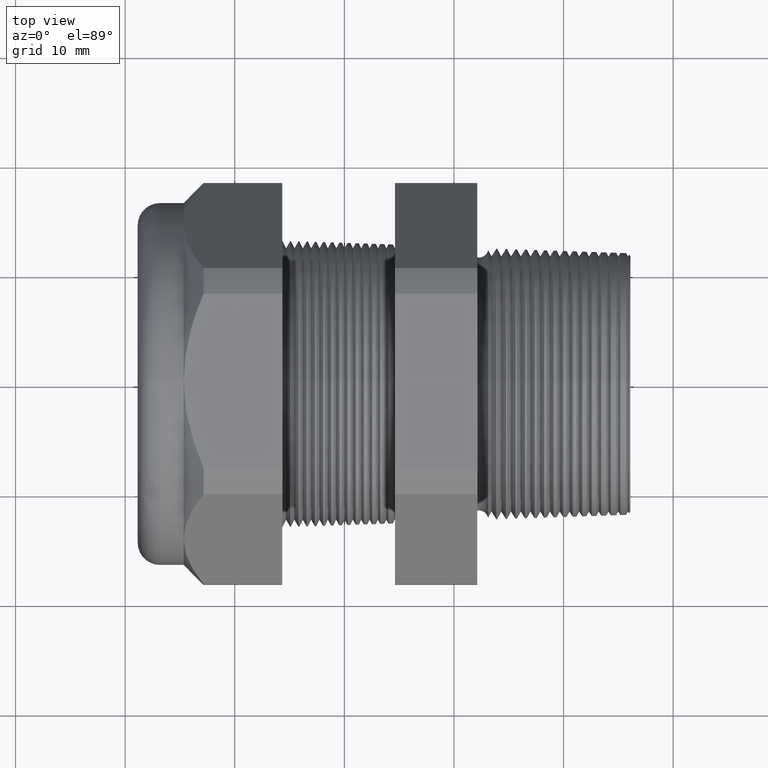
[diagram: clean part render]
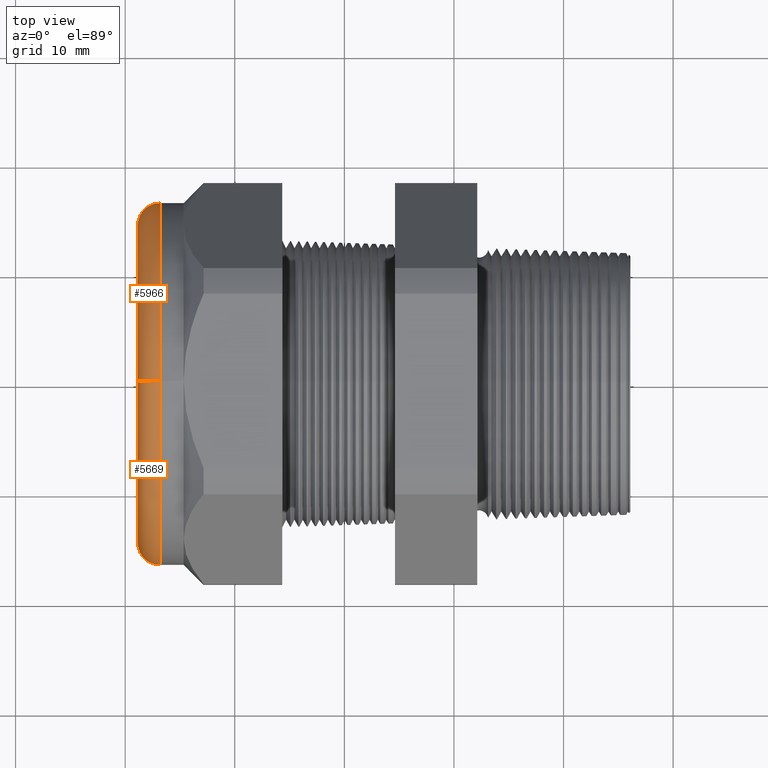
[diagram: same view with one multi-face feature highlighted, each face labeled with its STEP entity id]
A machine part, top view. The highlighted faces form ONE feature: a constant-radius fillet chain: 2 tangent blend faces with common blend radius 2.032 mm. The faces share edges in the B-rep.
Their STEP definitions:
[1] entity #5669 (Torus):
#82 = EDGE_CURVE ( 'NONE', #5962, #5964, #542, .T. ) ;
#542 = CIRCLE ( 'NONE', #597, 0.6499999999999999100 ) ;
#594 = DIRECTION ( 'NONE',  ( 0.0000000000000000000, 0.0000000000000000000, 1.000000000000000000 ) ) ;
#595 = DIRECTION ( 'NONE',  ( 1.000000000000000000, 0.0000000000000000000, 0.0000000000000000000 ) ) ;
#596 = CARTESIAN_POINT ( 'NONE',  ( -1.449999999999999700, 0.0000000000000000000, 0.0000000000000000000 ) ) ;
#597 = AXIS2_PLACEMENT_3D ( 'NONE', #596, #595, #594 ) ;
#1579 = DIRECTION ( 'NONE',  ( 0.0000000000000000000, 0.0000000000000000000, 1.000000000000000000 ) ) ;
#1580 = DIRECTION ( 'NONE',  ( -1.000000000000000000, 0.0000000000000000000, 0.0000000000000000000 ) ) ;
#1581 = CARTESIAN_POINT ( 'NONE',  ( -1.529999999999999800, 0.0000000000000000000, 0.0000000000000000000 ) ) ;
#1582 = AXIS2_PLACEMENT_3D ( 'NONE', #1581, #1580, #1579 ) ;
#1583 = CIRCLE ( 'NONE', #1582, 0.5699999999999999500 ) ;
#3500 = DIRECTION ( 'NONE',  ( 0.0000000000000000000, 0.0000000000000000000, 1.000000000000000000 ) ) ;
#3501 = DIRECTION ( 'NONE',  ( -1.000000000000000000, 0.0000000000000000000, 0.0000000000000000000 ) ) ;
#3502 = AXIS2_PLACEMENT_3D ( 'NONE', #3508, #3501, #3500 ) ;
#3503 = TOROIDAL_SURFACE ( 'NONE', #3502, 0.5699999999999999500, 0.08000000000000000200 ) ;
#3504 = FACE_OUTER_BOUND ( 'NONE', #5610, .T. ) ;
#3508 = CARTESIAN_POINT ( 'NONE',  ( -1.449999999999999700, 0.0000000000000000000, 0.0000000000000000000 ) ) ;
#3924 = DIRECTION ( 'NONE',  ( 0.0000000000000000000, -1.224646799147353900E-016, 1.000000000000000000 ) ) ;
#3925 = DIRECTION ( 'NONE',  ( 0.0000000000000000000, 1.000000000000000000, 1.224646799147353200E-016 ) ) ;
#3926 = CARTESIAN_POINT ( 'NONE',  ( -1.449999999999999700, 6.980486755139912600E-017, -0.5699999999999999500 ) ) ;
#3927 = AXIS2_PLACEMENT_3D ( 'NONE', #3926, #3925, #3924 ) ;
#3928 = CIRCLE ( 'NONE', #3927, 0.07999999999999996000 ) ;
#3929 = CARTESIAN_POINT ( 'NONE',  ( -1.449999999999999700, 0.0000000000000000000, -0.6499999999999999100 ) ) ;
#3930 = CARTESIAN_POINT ( 'NONE',  ( -1.449999999999999700, 7.960204194457794200E-017, 0.6499999999999999100 ) ) ;
#3931 = CARTESIAN_POINT ( 'NONE',  ( -1.529999999999999800, 7.470345474798854000E-017, -0.5699999999999999500 ) ) ;
#3932 = CARTESIAN_POINT ( 'NONE',  ( -1.529999999999999800, 0.0000000000000000000, 0.5699999999999999500 ) ) ;
#3964 = DIRECTION ( 'NONE',  ( 0.0000000000000000000, 0.0000000000000000000, -1.000000000000000000 ) ) ;
#3965 = DIRECTION ( 'NONE',  ( 0.0000000000000000000, -1.000000000000000000, 0.0000000000000000000 ) ) ;
#3966 = CARTESIAN_POINT ( 'NONE',  ( -1.449999999999999700, 0.0000000000000000000, 0.5699999999999999500 ) ) ;
#3967 = AXIS2_PLACEMENT_3D ( 'NONE', #3966, #3965, #3964 ) ;
#3968 = CIRCLE ( 'NONE', #3967, 0.07999999999999996000 ) ;
#4643 = EDGE_CURVE ( 'NONE', #5961, #5960, #1583, .T. ) ;
#5610 = EDGE_LOOP ( 'NONE', ( #5670, #5671, #5672, #5673 ) ) ;
#5669 = ADVANCED_FACE ( 'NONE', ( #3504 ), #3503, .T. ) ;
#5670 = ORIENTED_EDGE ( 'NONE', *, *, #5965, .F. ) ;
#5671 = ORIENTED_EDGE ( 'NONE', *, *, #82, .F. ) ;
#5672 = ORIENTED_EDGE ( 'NONE', *, *, #6011, .T. ) ;
#5673 = ORIENTED_EDGE ( 'NONE', *, *, #4643, .F. ) ;
#5960 = VERTEX_POINT ( 'NONE', #3932 ) ;
#5961 = VERTEX_POINT ( 'NONE', #3931 ) ;
#5962 = VERTEX_POINT ( 'NONE', #3930 ) ;
#5964 = VERTEX_POINT ( 'NONE', #3929 ) ;
#5965 = EDGE_CURVE ( 'NONE', #5964, #5961, #3928, .T. ) ;
#6011 = EDGE_CURVE ( 'NONE', #5962, #5960, #3968, .T. ) ;
[2] entity #5966 (Torus):
#3908 = DIRECTION ( 'NONE',  ( 0.0000000000000000000, 0.0000000000000000000, 1.000000000000000000 ) ) ;
#3909 = DIRECTION ( 'NONE',  ( 1.000000000000000000, 0.0000000000000000000, 0.0000000000000000000 ) ) ;
#3910 = CARTESIAN_POINT ( 'NONE',  ( -1.449999999999999700, 0.0000000000000000000, 0.0000000000000000000 ) ) ;
#3911 = AXIS2_PLACEMENT_3D ( 'NONE', #3910, #3909, #3908 ) ;
#3912 = CIRCLE ( 'NONE', #3911, 0.6499999999999999100 ) ;
#3913 = DIRECTION ( 'NONE',  ( 0.0000000000000000000, 0.0000000000000000000, 1.000000000000000000 ) ) ;
#3914 = DIRECTION ( 'NONE',  ( -1.000000000000000000, 0.0000000000000000000, 0.0000000000000000000 ) ) ;
#3915 = CARTESIAN_POINT ( 'NONE',  ( -1.529999999999999800, 0.0000000000000000000, 0.0000000000000000000 ) ) ;
#3916 = AXIS2_PLACEMENT_3D ( 'NONE', #3915, #3914, #3913 ) ;
#3917 = CIRCLE ( 'NONE', #3916, 0.5699999999999999500 ) ;
#3918 = DIRECTION ( 'NONE',  ( 0.0000000000000000000, 0.0000000000000000000, 1.000000000000000000 ) ) ;
#3919 = DIRECTION ( 'NONE',  ( -1.000000000000000000, 0.0000000000000000000, 0.0000000000000000000 ) ) ;
#3920 = CARTESIAN_POINT ( 'NONE',  ( -1.449999999999999700, 0.0000000000000000000, 0.0000000000000000000 ) ) ;
#3921 = AXIS2_PLACEMENT_3D ( 'NONE', #3920, #3919, #3918 ) ;
#3922 = TOROIDAL_SURFACE ( 'NONE', #3921, 0.5699999999999999500, 0.08000000000000000200 ) ;
#3923 = FACE_OUTER_BOUND ( 'NONE', #4978, .T. ) ;
#3924 = DIRECTION ( 'NONE',  ( 0.0000000000000000000, -1.224646799147353900E-016, 1.000000000000000000 ) ) ;
#3925 = DIRECTION ( 'NONE',  ( 0.0000000000000000000, 1.000000000000000000, 1.224646799147353200E-016 ) ) ;
#3926 = CARTESIAN_POINT ( 'NONE',  ( -1.449999999999999700, 6.980486755139912600E-017, -0.5699999999999999500 ) ) ;
#3927 = AXIS2_PLACEMENT_3D ( 'NONE', #3926, #3925, #3924 ) ;
#3928 = CIRCLE ( 'NONE', #3927, 0.07999999999999996000 ) ;
#3929 = CARTESIAN_POINT ( 'NONE',  ( -1.449999999999999700, 0.0000000000000000000, -0.6499999999999999100 ) ) ;
#3930 = CARTESIAN_POINT ( 'NONE',  ( -1.449999999999999700, 7.960204194457794200E-017, 0.6499999999999999100 ) ) ;
#3931 = CARTESIAN_POINT ( 'NONE',  ( -1.529999999999999800, 7.470345474798854000E-017, -0.5699999999999999500 ) ) ;
#3932 = CARTESIAN_POINT ( 'NONE',  ( -1.529999999999999800, 0.0000000000000000000, 0.5699999999999999500 ) ) ;
#3964 = DIRECTION ( 'NONE',  ( 0.0000000000000000000, 0.0000000000000000000, -1.000000000000000000 ) ) ;
#3965 = DIRECTION ( 'NONE',  ( 0.0000000000000000000, -1.000000000000000000, 0.0000000000000000000 ) ) ;
#3966 = CARTESIAN_POINT ( 'NONE',  ( -1.449999999999999700, 0.0000000000000000000, 0.5699999999999999500 ) ) ;
#3967 = AXIS2_PLACEMENT_3D ( 'NONE', #3966, #3965, #3964 ) ;
#3968 = CIRCLE ( 'NONE', #3967, 0.07999999999999996000 ) ;
#4978 = EDGE_LOOP ( 'NONE', ( #5971, #5967, #5963, #6009 ) ) ;
#5960 = VERTEX_POINT ( 'NONE', #3932 ) ;
#5961 = VERTEX_POINT ( 'NONE', #3931 ) ;
#5962 = VERTEX_POINT ( 'NONE', #3930 ) ;
#5963 = ORIENTED_EDGE ( 'NONE', *, *, #5968, .F. ) ;
#5964 = VERTEX_POINT ( 'NONE', #3929 ) ;
#5965 = EDGE_CURVE ( 'NONE', #5964, #5961, #3928, .T. ) ;
#5966 = ADVANCED_FACE ( 'NONE', ( #3923 ), #3922, .T. ) ;
#5967 = ORIENTED_EDGE ( 'NONE', *, *, #5965, .T. ) ;
#5968 = EDGE_CURVE ( 'NONE', #5960, #5961, #3917, .T. ) ;
#5970 = EDGE_CURVE ( 'NONE', #5964, #5962, #3912, .T. ) ;
#5971 = ORIENTED_EDGE ( 'NONE', *, *, #5970, .F. ) ;
#6009 = ORIENTED_EDGE ( 'NONE', *, *, #6011, .F. ) ;
#6011 = EDGE_CURVE ( 'NONE', #5962, #5960, #3968, .T. ) ;